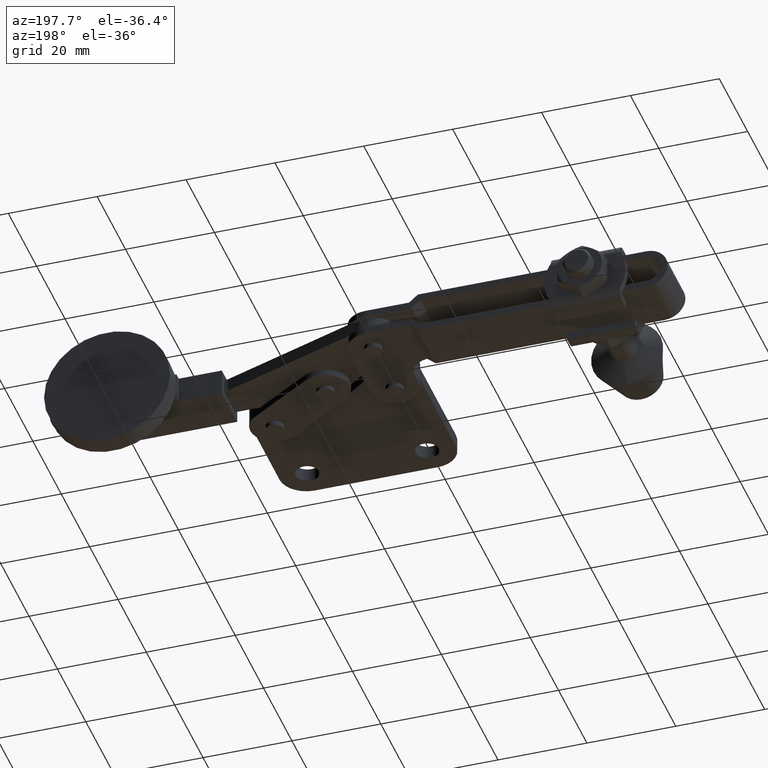
[diagram: clean part render]
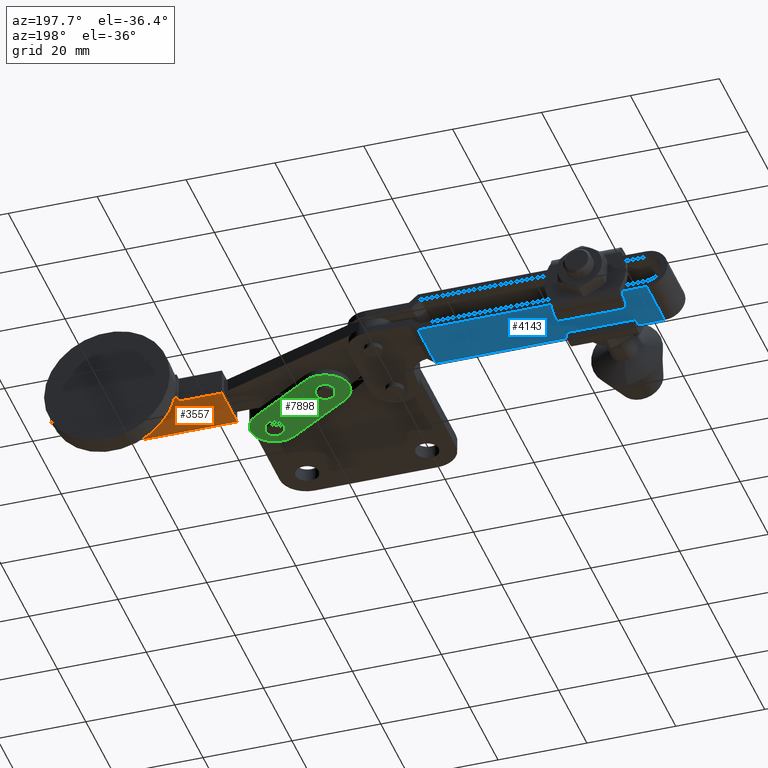
[diagram: same view with three faces highlighted in distinct colors, each labeled with its STEP entity id]
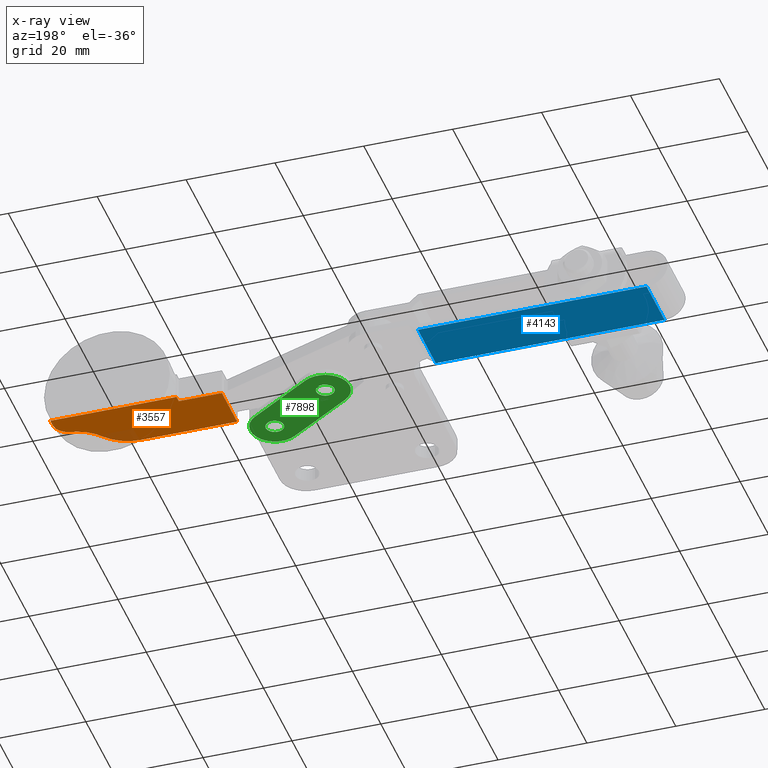
[diagram: x-ray of the same camera — body ghosted, the three highlighted faces saturated]
A machine part, auxiliary view with three faces highlighted in distinct colors.
The next image is the same camera in x-ray (body ghosted, the three faces saturated) — at least one of them is partly hidden behind the body in this view.
Their STEP definitions:

[orange] entity #3557 — the highlighted planar face has unit normal (-0, -0, 1).
#257 = EDGE_CURVE ( 'NONE', #2211, #4715, #1412, .T. ) ;
#279 = DIRECTION ( 'NONE',  ( 1.000000000000000000, 0.0000000000000000000, 0.0000000000000000000 ) ) ;
#387 = EDGE_CURVE ( 'NONE', #8531, #8869, #6295, .T. ) ;
#391 = DIRECTION ( 'NONE',  ( 0.0000000000000000000, -1.000000000000000000, 0.0000000000000000000 ) ) ;
#435 = VERTEX_POINT ( 'NONE', #1945 ) ;
#446 = ORIENTED_EDGE ( 'NONE', *, *, #1557, .F. ) ;
#515 = CARTESIAN_POINT ( 'NONE',  ( 11.34169471949857800, 28.20000000000000300, -3.000000000000000000 ) ) ;
#524 = EDGE_CURVE ( 'NONE', #4630, #435, #6460, .T. ) ;
#630 = LINE ( 'NONE', #7012, #4271 ) ;
#717 = CARTESIAN_POINT ( 'NONE',  ( 11.70313988165465700, 28.20000000000000300, -3.000000000000000000 ) ) ;
#826 = DIRECTION ( 'NONE',  ( 1.000000000000000000, 0.0000000000000000000, -0.0000000000000000000 ) ) ;
#1028 = CARTESIAN_POINT ( 'NONE',  ( 39.74169471949844700, 26.44905715810756400, -3.000000000000000000 ) ) ;
#1334 = DIRECTION ( 'NONE',  ( -0.0000000000000000000, -0.0000000000000000000, -1.000000000000000000 ) ) ;
#1412 = CIRCLE ( 'NONE', #3542, 9.500000000000023100 ) ;
#1504 = PLANE ( 'NONE',  #3022 ) ;
#1526 = CARTESIAN_POINT ( 'NONE',  ( 38.15498205220872300, 13.96481783075999600, -3.000000000000000000 ) ) ;
#1557 = EDGE_CURVE ( 'NONE', #8869, #7064, #8274, .T. ) ;
#1625 = EDGE_CURVE ( 'NONE', #8377, #8531, #630, .T. ) ;
#1792 = AXIS2_PLACEMENT_3D ( 'NONE', #8688, #2144, #4787 ) ;
#1817 = CIRCLE ( 'NONE', #1792, 3.499999999999996000 ) ;
#1849 = DIRECTION ( 'NONE',  ( -1.000000000000000000, -1.527045313359872400E-016, -0.0000000000000000000 ) ) ;
#1927 = CARTESIAN_POINT ( 'NONE',  ( 1.646854916602887000, 15.70000000000000600, -3.000000000000000000 ) ) ;
#1945 = CARTESIAN_POINT ( 'NONE',  ( 39.38024955734180600, 28.20000000000000600, -3.000000000000000000 ) ) ;
#2144 = DIRECTION ( 'NONE',  ( 0.0000000000000000000, 0.0000000000000000000, 1.000000000000000000 ) ) ;
#2181 = CARTESIAN_POINT ( 'NONE',  ( 11.34169471949857800, 26.59999999999962500, -3.000000000000000000 ) ) ;
#2211 = VERTEX_POINT ( 'NONE', #3546 ) ;
#2217 = DIRECTION ( 'NONE',  ( 0.0000000000000000000, 0.0000000000000000000, 1.000000000000000000 ) ) ;
#2381 = CARTESIAN_POINT ( 'NONE',  ( 11.34169471949857800, 28.20000000000000300, -3.000000000000000000 ) ) ;
#2425 = CARTESIAN_POINT ( 'NONE',  ( 11.34169471949857800, 28.20000000000000300, -3.000000000000000000 ) ) ;
#2440 = VERTEX_POINT ( 'NONE', #4180 ) ;
#2563 = VECTOR ( 'NONE', #3716, 1000.000000000000000 ) ;
#2673 = DIRECTION ( 'NONE',  ( 1.000000000000000000, 0.0000000000000000000, 0.0000000000000000000 ) ) ;
#2718 = CARTESIAN_POINT ( 'NONE',  ( 30.87208373242029300, 19.47084108385508800, -3.000000000000000000 ) ) ;
#2722 = LINE ( 'NONE', #2958, #6550 ) ;
#2789 = CARTESIAN_POINT ( 'NONE',  ( 1.646854916602887000, 15.70000000000000600, -3.000000000000000000 ) ) ;
#2866 = CARTESIAN_POINT ( 'NONE',  ( 1.646854916602887000, 26.59999999999962500, -3.000000000000000000 ) ) ;
#2958 = CARTESIAN_POINT ( 'NONE',  ( 11.34169471949857800, 28.20000000000000300, -3.000000000000000000 ) ) ;
#3022 = AXIS2_PLACEMENT_3D ( 'NONE', #7464, #2217, #826 ) ;
#3320 = ORIENTED_EDGE ( 'NONE', *, *, #3578, .F. ) ;
#3377 = ORIENTED_EDGE ( 'NONE', *, *, #6088, .F. ) ;
#3536 = ORIENTED_EDGE ( 'NONE', *, *, #4435, .F. ) ;
#3542 = AXIS2_PLACEMENT_3D ( 'NONE', #8129, #5105, #279 ) ;
#3546 = CARTESIAN_POINT ( 'NONE',  ( 23.29404057382338800, 15.70000000000000600, -3.000000000000000000 ) ) ;
#3557 = ADVANCED_FACE ( 'NONE', ( #4427 ), #1504, .F. ) ;
#3578 = EDGE_CURVE ( 'NONE', #435, #8377, #2722, .T. ) ;
#3716 = DIRECTION ( 'NONE',  ( -1.000000000000000000, 0.0000000000000000000, 0.0000000000000000000 ) ) ;
#3878 = DIRECTION ( 'NONE',  ( -4.953683908099178700E-016, 1.000000000000000000, 0.0000000000000000000 ) ) ;
#3912 = ORIENTED_EDGE ( 'NONE', *, *, #1625, .F. ) ;
#4180 = CARTESIAN_POINT ( 'NONE',  ( 36.77190102705869600, 22.98945006026779900, -3.000000000000000000 ) ) ;
#4186 = CARTESIAN_POINT ( 'NONE',  ( 1.646854916602887000, 26.59999999999962500, -3.000000000000000000 ) ) ;
#4253 = VERTEX_POINT ( 'NONE', #1927 ) ;
#4271 = VECTOR ( 'NONE', #6997, 1000.000000000000000 ) ;
#4361 = EDGE_CURVE ( 'NONE', #4253, #2211, #5679, .T. ) ;
#4427 = FACE_OUTER_BOUND ( 'NONE', #6159, .T. ) ;
#4435 = EDGE_CURVE ( 'NONE', #2440, #6393, #1817, .T. ) ;
#4630 = VERTEX_POINT ( 'NONE', #6530 ) ;
#4715 = VERTEX_POINT ( 'NONE', #2718 ) ;
#4787 = DIRECTION ( 'NONE',  ( 1.000000000000000000, 0.0000000000000000000, 0.0000000000000000000 ) ) ;
#4852 = EDGE_CURVE ( 'NONE', #6393, #4630, #4980, .T. ) ;
#4980 = LINE ( 'NONE', #1028, #6861 ) ;
#4989 = EDGE_CURVE ( 'NONE', #4715, #2440, #5451, .T. ) ;
#5075 = VECTOR ( 'NONE', #391, 1000.000000000000000 ) ;
#5105 = DIRECTION ( 'NONE',  ( 0.0000000000000000000, 0.0000000000000000000, 1.000000000000000000 ) ) ;
#5451 = CIRCLE ( 'NONE', #5808, 9.130000000000054100 ) ;
#5568 = ORIENTED_EDGE ( 'NONE', *, *, #524, .F. ) ;
#5645 = CARTESIAN_POINT ( 'NONE',  ( 39.74169471949844700, 26.44905715810756400, -3.000000000000000000 ) ) ;
#5679 = LINE ( 'NONE', #2789, #9200 ) ;
#5732 = ORIENTED_EDGE ( 'NONE', *, *, #4989, .F. ) ;
#5808 = AXIS2_PLACEMENT_3D ( 'NONE', #1526, #1334, #2673 ) ;
#6017 = DIRECTION ( 'NONE',  ( -1.000000000000000000, -1.527045313359872400E-016, -0.0000000000000000000 ) ) ;
#6088 = EDGE_CURVE ( 'NONE', #7064, #4253, #8273, .T. ) ;
#6159 = EDGE_LOOP ( 'NONE', ( #6464, #7451, #3377, #446, #8193, #3912, #3320, #5568, #7229, #3536, #5732 ) ) ;
#6295 = LINE ( 'NONE', #2425, #5075 ) ;
#6393 = VERTEX_POINT ( 'NONE', #5645 ) ;
#6399 = VECTOR ( 'NONE', #8352, 1000.000000000000000 ) ;
#6460 = LINE ( 'NONE', #515, #8358 ) ;
#6464 = ORIENTED_EDGE ( 'NONE', *, *, #257, .F. ) ;
#6530 = CARTESIAN_POINT ( 'NONE',  ( 39.74169471949844700, 28.20000000000000600, -3.000000000000000000 ) ) ;
#6550 = VECTOR ( 'NONE', #1849, 1000.000000000000000 ) ;
#6740 = DIRECTION ( 'NONE',  ( 1.000000000000000000, 0.0000000000000000000, 0.0000000000000000000 ) ) ;
#6861 = VECTOR ( 'NONE', #3878, 1000.000000000000000 ) ;
#6997 = DIRECTION ( 'NONE',  ( -1.000000000000000000, -1.527045313359872400E-016, -0.0000000000000000000 ) ) ;
#7012 = CARTESIAN_POINT ( 'NONE',  ( 11.34169471949857800, 28.20000000000000300, -3.000000000000000000 ) ) ;
#7064 = VERTEX_POINT ( 'NONE', #2866 ) ;
#7229 = ORIENTED_EDGE ( 'NONE', *, *, #4852, .F. ) ;
#7451 = ORIENTED_EDGE ( 'NONE', *, *, #4361, .F. ) ;
#7464 = CARTESIAN_POINT ( 'NONE',  ( 23.29404057382338800, 25.20000000000002800, -3.000000000000000000 ) ) ;
#8129 = CARTESIAN_POINT ( 'NONE',  ( 23.29404057382338800, 25.20000000000002800, -3.000000000000000000 ) ) ;
#8138 = CARTESIAN_POINT ( 'NONE',  ( 11.34169471949857800, 26.59999999999962500, -3.000000000000000000 ) ) ;
#8193 = ORIENTED_EDGE ( 'NONE', *, *, #387, .F. ) ;
#8273 = LINE ( 'NONE', #4186, #6399 ) ;
#8274 = LINE ( 'NONE', #8138, #2563 ) ;
#8352 = DIRECTION ( 'NONE',  ( 0.0000000000000000000, -1.000000000000000000, 0.0000000000000000000 ) ) ;
#8358 = VECTOR ( 'NONE', #6017, 1000.000000000000000 ) ;
#8377 = VERTEX_POINT ( 'NONE', #717 ) ;
#8531 = VERTEX_POINT ( 'NONE', #2381 ) ;
#8688 = CARTESIAN_POINT ( 'NONE',  ( 36.24169471949845400, 26.44905715810756800, -3.000000000000000000 ) ) ;
#8869 = VERTEX_POINT ( 'NONE', #2181 ) ;
#9200 = VECTOR ( 'NONE', #6740, 1000.000000000000000 ) ;

[blue] entity #4143 — the highlighted planar face has unit normal (0, 0, 1).
#290 = EDGE_CURVE ( 'NONE', #2680, #5718, #3078, .T. ) ;
#365 = DIRECTION ( 'NONE',  ( -1.000000000000000000, -8.769027171062775600E-016, 1.348220705526906800E-016 ) ) ;
#571 = CARTESIAN_POINT ( 'NONE',  ( -97.50000000000012800, 25.39999999999995900, -4.700000000000054400 ) ) ;
#811 = DIRECTION ( 'NONE',  ( 1.000000000000000000, 8.769027171062774700E-016, -1.348220705526906800E-016 ) ) ;
#914 = LINE ( 'NONE', #2228, #2585 ) ;
#1047 = VECTOR ( 'NONE', #8159, 1000.000000000000000 ) ;
#1207 = CARTESIAN_POINT ( 'NONE',  ( -97.50000000000012800, 11.99999999999990100, -4.700000000000044600 ) ) ;
#2170 = DIRECTION ( 'NONE',  ( -8.769027171062738200E-016, 1.000000000000000000, -3.901894245522432200E-021 ) ) ;
#2228 = CARTESIAN_POINT ( 'NONE',  ( -46.02999999999994400, 11.99999999999996300, -4.700000000000051700 ) ) ;
#2585 = VECTOR ( 'NONE', #2170, 1000.000000000000000 ) ;
#2680 = VERTEX_POINT ( 'NONE', #5841 ) ;
#2699 = VECTOR ( 'NONE', #3961, 1000.000000000000000 ) ;
#2854 = ORIENTED_EDGE ( 'NONE', *, *, #7206, .T. ) ;
#3078 = LINE ( 'NONE', #5160, #8132 ) ;
#3456 = EDGE_LOOP ( 'NONE', ( #6932, #2854, #6792, #5033 ) ) ;
#3961 = DIRECTION ( 'NONE',  ( -8.769027171062738200E-016, 1.000000000000000000, -3.901894245522432200E-021 ) ) ;
#4143 = ADVANCED_FACE ( 'NONE', ( #5230 ), #5651, .F. ) ;
#4172 = CARTESIAN_POINT ( 'NONE',  ( -102.2000000000002000, 25.39999999999995600, -4.700000000000051700 ) ) ;
#4213 = VERTEX_POINT ( 'NONE', #571 ) ;
#4654 = LINE ( 'NONE', #4172, #1047 ) ;
#4962 = CARTESIAN_POINT ( 'NONE',  ( -46.02999999999997300, 38.10000000000003700, -4.700000000000051700 ) ) ;
#5033 = ORIENTED_EDGE ( 'NONE', *, *, #7371, .F. ) ;
#5160 = CARTESIAN_POINT ( 'NONE',  ( -97.50000000000019900, 38.09999999999999400, -4.700000000000044600 ) ) ;
#5230 = FACE_OUTER_BOUND ( 'NONE', #3456, .T. ) ;
#5476 = CARTESIAN_POINT ( 'NONE',  ( -46.03000000000001500, 25.39999999999994900, -4.700000000000072100 ) ) ;
#5651 = PLANE ( 'NONE',  #6030 ) ;
#5718 = VERTEX_POINT ( 'NONE', #4962 ) ;
#5841 = CARTESIAN_POINT ( 'NONE',  ( -97.50000000000019900, 38.09999999999999400, -4.700000000000044600 ) ) ;
#6030 = AXIS2_PLACEMENT_3D ( 'NONE', #6353, #7923, #365 ) ;
#6353 = CARTESIAN_POINT ( 'NONE',  ( -97.50000000000012800, 11.99999999999990100, -4.700000000000044600 ) ) ;
#6717 = EDGE_CURVE ( 'NONE', #4213, #7307, #4654, .T. ) ;
#6792 = ORIENTED_EDGE ( 'NONE', *, *, #290, .T. ) ;
#6932 = ORIENTED_EDGE ( 'NONE', *, *, #6717, .F. ) ;
#7206 = EDGE_CURVE ( 'NONE', #4213, #2680, #8186, .T. ) ;
#7307 = VERTEX_POINT ( 'NONE', #5476 ) ;
#7371 = EDGE_CURVE ( 'NONE', #7307, #5718, #914, .T. ) ;
#7923 = DIRECTION ( 'NONE',  ( 1.348220705526906800E-016, 3.901894235386274200E-021, 1.000000000000000000 ) ) ;
#8132 = VECTOR ( 'NONE', #811, 1000.000000000000000 ) ;
#8159 = DIRECTION ( 'NONE',  ( 1.000000000000000000, -6.678685382510314100E-017, -1.357687016552162500E-016 ) ) ;
#8186 = LINE ( 'NONE', #1207, #2699 ) ;

[green] entity #7898 — the highlighted planar face has unit normal (-0, -0, -1).
#18 = VERTEX_POINT ( 'NONE', #1379 ) ;
#74 = CARTESIAN_POINT ( 'NONE',  ( -5.499999999999991100, 11.69999999999998900, -3.000000000000000000 ) ) ;
#208 = PLANE ( 'NONE',  #4217 ) ;
#255 = VECTOR ( 'NONE', #759, 1000.000000000000100 ) ;
#359 = DIRECTION ( 'NONE',  ( 0.0000000000000000000, 1.000000000000000000, 0.0000000000000000000 ) ) ;
#405 = AXIS2_PLACEMENT_3D ( 'NONE', #7936, #7868, #6133 ) ;
#510 = DIRECTION ( 'NONE',  ( 5.580250284519627000E-020, 1.618127100990713800E-019, 1.000000000000000000 ) ) ;
#519 = CARTESIAN_POINT ( 'NONE',  ( -8.469999999999981100, 7.070842409249722000, -3.000000000000000000 ) ) ;
#542 = CARTESIAN_POINT ( 'NONE',  ( -19.80830528050095700, 20.88000000000000300, -3.000000000000000000 ) ) ;
#759 = DIRECTION ( 'NONE',  ( -0.8416650165000393300, 0.5399999999999892700, -4.041184897555122800E-020 ) ) ;
#770 = DIRECTION ( 'NONE',  ( 0.0000000000000000000, 1.000000000000000000, 0.0000000000000000000 ) ) ;
#786 = CARTESIAN_POINT ( 'NONE',  ( -19.80830528050095300, 20.88000000000001000, -3.000000000000000000 ) ) ;
#856 = ORIENTED_EDGE ( 'NONE', *, *, #7266, .T. ) ;
#993 = CARTESIAN_POINT ( 'NONE',  ( -21.83330528050095500, 20.88000000000000300, -3.000000000000000000 ) ) ;
#1142 = CIRCLE ( 'NONE', #6317, 5.500000000000071100 ) ;
#1197 = ORIENTED_EDGE ( 'NONE', *, *, #7794, .F. ) ;
#1379 = CARTESIAN_POINT ( 'NONE',  ( -17.78330528050095800, 20.88000000000000300, -3.000000000000000000 ) ) ;
#1470 = FACE_BOUND ( 'NONE', #4676, .T. ) ;
#1506 = DIRECTION ( 'NONE',  ( 0.8416650165000394400, -0.5399999999999893800, 0.0000000000000000000 ) ) ;
#1608 = VERTEX_POINT ( 'NONE', #8447 ) ;
#1619 = VERTEX_POINT ( 'NONE', #993 ) ;
#1968 = DIRECTION ( 'NONE',  ( 5.580250284519627000E-020, 1.618127100990713800E-019, 1.000000000000000000 ) ) ;
#2133 = LINE ( 'NONE', #4309, #255 ) ;
#2277 = CARTESIAN_POINT ( 'NONE',  ( -2.529999999999964700, 16.32915759075024200, -3.000000000000000000 ) ) ;
#2433 = ORIENTED_EDGE ( 'NONE', *, *, #7227, .F. ) ;
#2470 = VECTOR ( 'NONE', #2543, 1000.000000000000100 ) ;
#2543 = DIRECTION ( 'NONE',  ( 0.8416650165000393300, -0.5399999999999892700, 4.041184897555122800E-020 ) ) ;
#2644 = AXIS2_PLACEMENT_3D ( 'NONE', #74, #5100, #770 ) ;
#2761 = CARTESIAN_POINT ( 'NONE',  ( -24.43746287125122800, 23.84999999999998700, -3.000000000000000000 ) ) ;
#2796 = ORIENTED_EDGE ( 'NONE', *, *, #8250, .F. ) ;
#2836 = CARTESIAN_POINT ( 'NONE',  ( -19.80830528050095700, 20.88000000000000300, -3.000000000000000000 ) ) ;
#2969 = EDGE_CURVE ( 'NONE', #5467, #3287, #5028, .T. ) ;
#2998 = CARTESIAN_POINT ( 'NONE',  ( -5.499999999999991100, 11.69999999999998900, -3.000000000000000000 ) ) ;
#3130 = EDGE_LOOP ( 'NONE', ( #4131, #856 ) ) ;
#3287 = VERTEX_POINT ( 'NONE', #7829 ) ;
#3359 = FACE_OUTER_BOUND ( 'NONE', #5899, .T. ) ;
#3412 = DIRECTION ( 'NONE',  ( 0.0000000000000000000, 1.000000000000000000, 0.0000000000000000000 ) ) ;
#3611 = DIRECTION ( 'NONE',  ( 5.580250284519627000E-020, 1.618127100990713800E-019, 1.000000000000000000 ) ) ;
#4131 = ORIENTED_EDGE ( 'NONE', *, *, #5389, .T. ) ;
#4170 = ORIENTED_EDGE ( 'NONE', *, *, #9063, .T. ) ;
#4217 = AXIS2_PLACEMENT_3D ( 'NONE', #5241, #4466, #5949 ) ;
#4309 = CARTESIAN_POINT ( 'NONE',  ( -16.83830528050098300, 25.50915759075029100, -3.000000000000000000 ) ) ;
#4466 = DIRECTION ( 'NONE',  ( -5.580250284519624600E-020, -1.618127100990714300E-019, -1.000000000000000000 ) ) ;
#4505 = CIRCLE ( 'NONE', #5496, 5.500000000000071900 ) ;
#4508 = CARTESIAN_POINT ( 'NONE',  ( -22.77830528050079200, 16.25084240924963600, -3.000000000000000000 ) ) ;
#4645 = EDGE_CURVE ( 'NONE', #7069, #8944, #2133, .T. ) ;
#4676 = EDGE_LOOP ( 'NONE', ( #8581, #4170 ) ) ;
#4701 = DIRECTION ( 'NONE',  ( 5.580250284519627000E-020, 1.618127100990713800E-019, 1.000000000000000000 ) ) ;
#4732 = ORIENTED_EDGE ( 'NONE', *, *, #4645, .F. ) ;
#4792 = ORIENTED_EDGE ( 'NONE', *, *, #2969, .F. ) ;
#4946 = AXIS2_PLACEMENT_3D ( 'NONE', #542, #510, #359 ) ;
#5028 = CIRCLE ( 'NONE', #405, 5.500000000000071100 ) ;
#5100 = DIRECTION ( 'NONE',  ( 5.580250284519627000E-020, 1.618127100990713800E-019, 1.000000000000000000 ) ) ;
#5241 = CARTESIAN_POINT ( 'NONE',  ( -5.500000000000001800, 11.69999999999999900, -3.000000000000000000 ) ) ;
#5389 = EDGE_CURVE ( 'NONE', #18, #1619, #8964, .T. ) ;
#5467 = VERTEX_POINT ( 'NONE', #2761 ) ;
#5496 = AXIS2_PLACEMENT_3D ( 'NONE', #6285, #1968, #6990 ) ;
#5835 = DIRECTION ( 'NONE',  ( 5.580250284519627000E-020, 1.618127100990713800E-019, 1.000000000000000000 ) ) ;
#5885 = CIRCLE ( 'NONE', #4946, 2.024999999999999000 ) ;
#5899 = EDGE_LOOP ( 'NONE', ( #2796, #2433, #4792, #1197, #4732 ) ) ;
#5949 = DIRECTION ( 'NONE',  ( 0.8416650165000394400, -0.5399999999999892700, 4.041184897555123400E-020 ) ) ;
#6133 = DIRECTION ( 'NONE',  ( 0.8416650165000394400, -0.5399999999999893800, 0.0000000000000000000 ) ) ;
#6274 = DIRECTION ( 'NONE',  ( 0.0000000000000000000, 1.000000000000000000, 0.0000000000000000000 ) ) ;
#6285 = CARTESIAN_POINT ( 'NONE',  ( -5.500000000000001800, 11.69999999999999900, -3.000000000000000000 ) ) ;
#6286 = VERTEX_POINT ( 'NONE', #519 ) ;
#6314 = LINE ( 'NONE', #4508, #2470 ) ;
#6317 = AXIS2_PLACEMENT_3D ( 'NONE', #786, #5835, #1506 ) ;
#6321 = CIRCLE ( 'NONE', #2644, 2.024999999999999000 ) ;
#6385 = AXIS2_PLACEMENT_3D ( 'NONE', #2836, #3611, #3412 ) ;
#6796 = EDGE_CURVE ( 'NONE', #1608, #9059, #7107, .T. ) ;
#6990 = DIRECTION ( 'NONE',  ( 0.8416650165000394400, -0.5399999999999892700, 0.0000000000000000000 ) ) ;
#7069 = VERTEX_POINT ( 'NONE', #2277 ) ;
#7107 = CIRCLE ( 'NONE', #7838, 2.024999999999999000 ) ;
#7189 = FACE_BOUND ( 'NONE', #3130, .T. ) ;
#7227 = EDGE_CURVE ( 'NONE', #3287, #6286, #6314, .T. ) ;
#7266 = EDGE_CURVE ( 'NONE', #1619, #18, #5885, .T. ) ;
#7794 = EDGE_CURVE ( 'NONE', #8944, #5467, #1142, .T. ) ;
#7829 = CARTESIAN_POINT ( 'NONE',  ( -22.77830528050079200, 16.25084240924963600, -3.000000000000000000 ) ) ;
#7838 = AXIS2_PLACEMENT_3D ( 'NONE', #2998, #4701, #6274 ) ;
#7868 = DIRECTION ( 'NONE',  ( 5.580250284519627000E-020, 1.618127100990713800E-019, 1.000000000000000000 ) ) ;
#7898 = ADVANCED_FACE ( 'NONE', ( #7189, #1470, #3359 ), #208, .T. ) ;
#7936 = CARTESIAN_POINT ( 'NONE',  ( -19.80830528050095300, 20.88000000000001000, -3.000000000000000000 ) ) ;
#8020 = CARTESIAN_POINT ( 'NONE',  ( -16.83830528050098300, 25.50915759075029100, -3.000000000000000000 ) ) ;
#8174 = CARTESIAN_POINT ( 'NONE',  ( -7.524999999999990600, 11.69999999999998900, -3.000000000000000000 ) ) ;
#8250 = EDGE_CURVE ( 'NONE', #6286, #7069, #4505, .T. ) ;
#8447 = CARTESIAN_POINT ( 'NONE',  ( -3.474999999999991200, 11.69999999999998900, -3.000000000000000000 ) ) ;
#8581 = ORIENTED_EDGE ( 'NONE', *, *, #6796, .T. ) ;
#8944 = VERTEX_POINT ( 'NONE', #8020 ) ;
#8964 = CIRCLE ( 'NONE', #6385, 2.024999999999999000 ) ;
#9059 = VERTEX_POINT ( 'NONE', #8174 ) ;
#9063 = EDGE_CURVE ( 'NONE', #9059, #1608, #6321, .T. ) ;